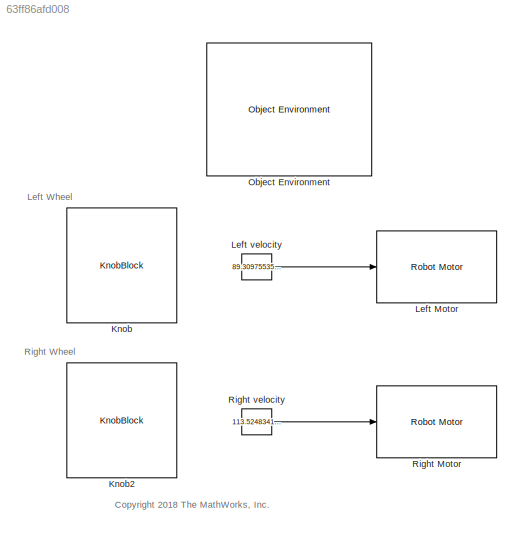
MODEL slx_63ff86afd008
KIND model
CONFIG AbsTol = auto
CONFIG EnableMultiTasking = off
CONFIG FixedStep = auto
CONFIG InitFcn = RPInit
CONFIG MaxStep = auto
CONFIG MinStep = auto
CONFIG RelTol = 1e-3
CONFIG SampleTimeConstraint = Unconstrained
CONFIG Solver = ode23t
CONFIG SolverName = ode23t
CONFIG StartTime = 0.0
CONFIG StopTime = 8
WORKSPACE source: mxarray member
WORKSPACE mapForSim: object (value not decoded)
WORKSPACE occGrid: robotics.BinaryOccupancyGrid (value not decoded)
BLOCK [KnobBlock] Knob
  ScaleMax = 127
  ScaleMin = -127
BLOCK [KnobBlock] Knob2
  ScaleMax = 127
  ScaleMin = -127
BLOCK [Reference] Left Motor  REF=RoboticsPlayground/Basic Sensors and Actuators/Robot Motor
  Ports = [1]
  SourceBlock = RoboticsPlayground/Basic Sensors and Actuators/Robot Motor
  SourceProductName = Robotics Playground
  SourceType = RP Robot Motor
BLOCK [Constant] Left velocity
  Value = 89.3097553507487
BLOCK [Reference] Object Environment  REF=RoboticsPlayground/Environments/Object Environment
  Ports = []
  SourceBlock = RoboticsPlayground/Environments/Object Environment
  SourceProductName = Robotics Playground
  SourceType = RP Object Environment
BLOCK [Reference] Right Motor  REF=RoboticsPlayground/Basic Sensors and Actuators/Robot Motor
  Ports = [1]
  SourceBlock = RoboticsPlayground/Basic Sensors and Actuators/Robot Motor
  SourceProductName = Robotics Playground
  SourceType = RP Robot Motor
BLOCK [Constant] Right velocity
  Value = 113.5248341515687
ANNOTATION (root): <copyright redacted>
ANNOTATION (root): Left Wheel
ANNOTATION (root): Right Wheel
LINE Left velocity:1 -> Left Motor:1
LINE Right velocity:1 -> Right Motor:1
